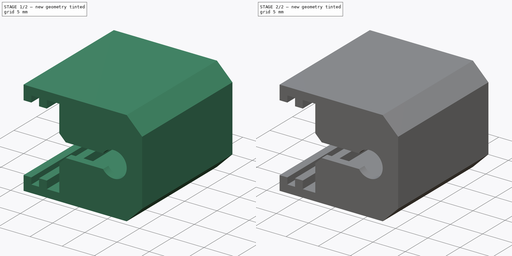
[diagram: build sequence overview — one tinted view per stage of 2, left to right]
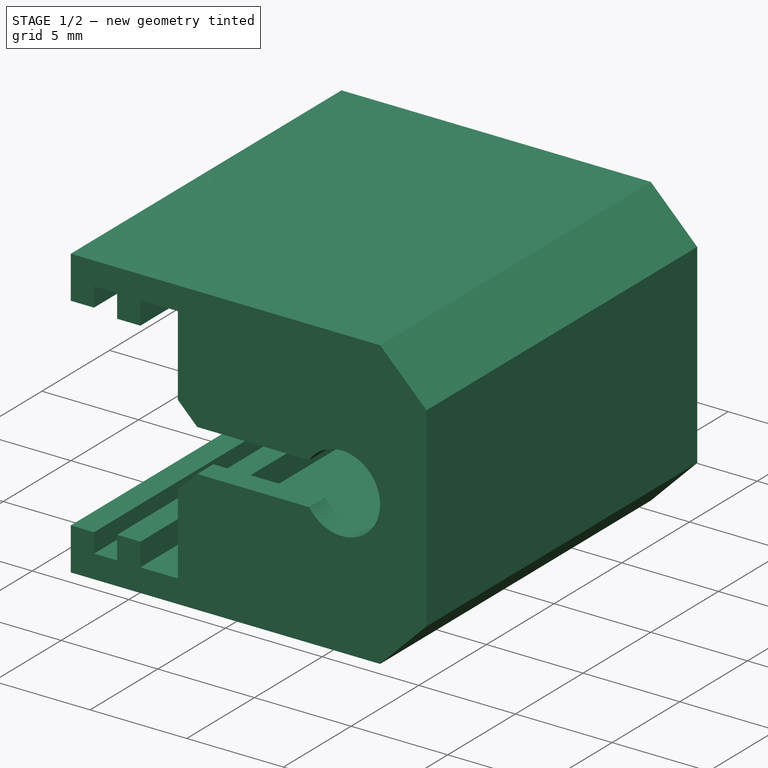
[diagram: stage 1 of 2 — iso view after this stage's code; geometry added in this stage tinted green]
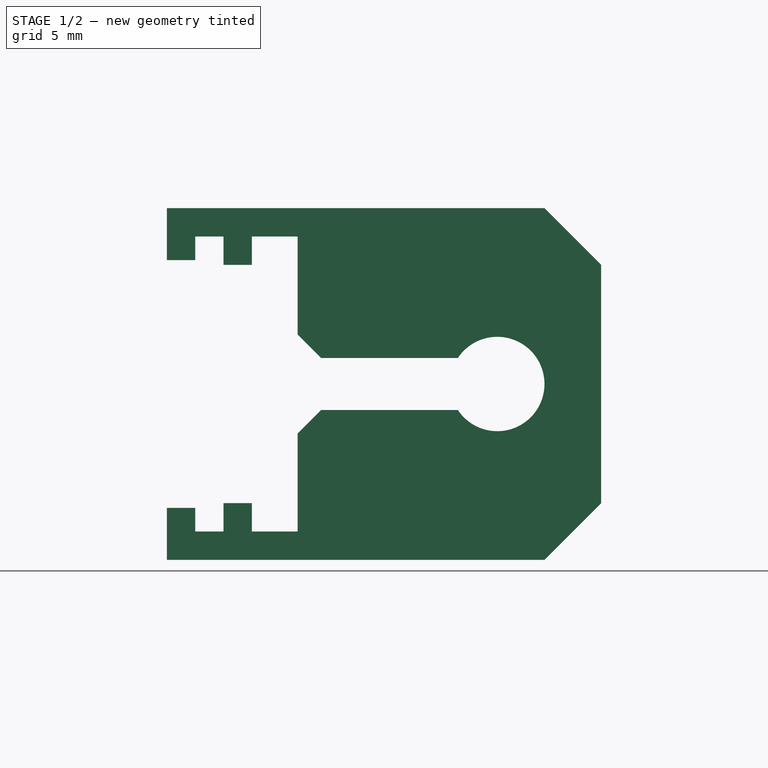
[diagram: stage 1 of 2 — front view after this stage's code; geometry added in this stage tinted green]
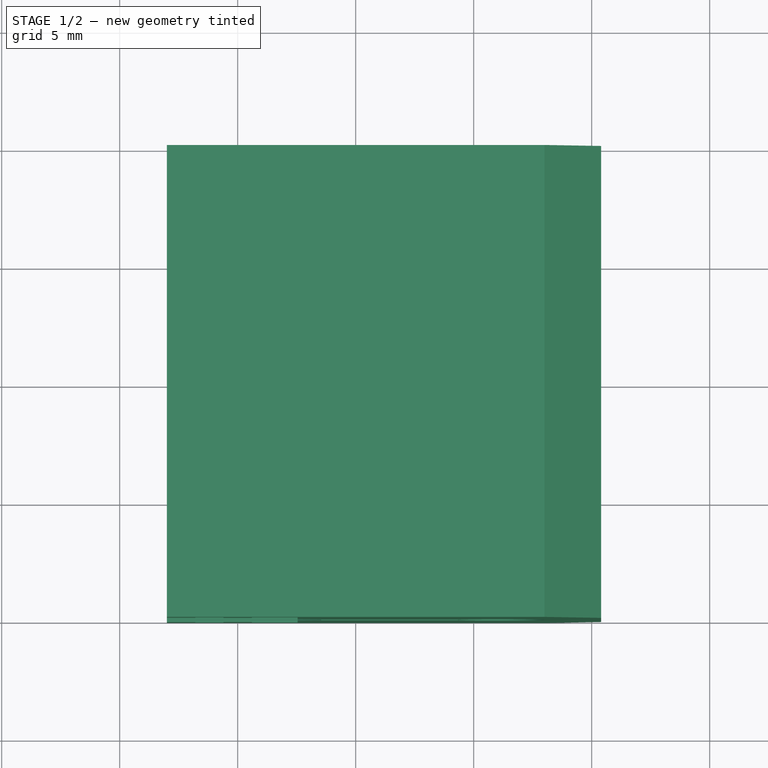
[diagram: stage 1 of 2 — top view after this stage's code; geometry added in this stage tinted green]
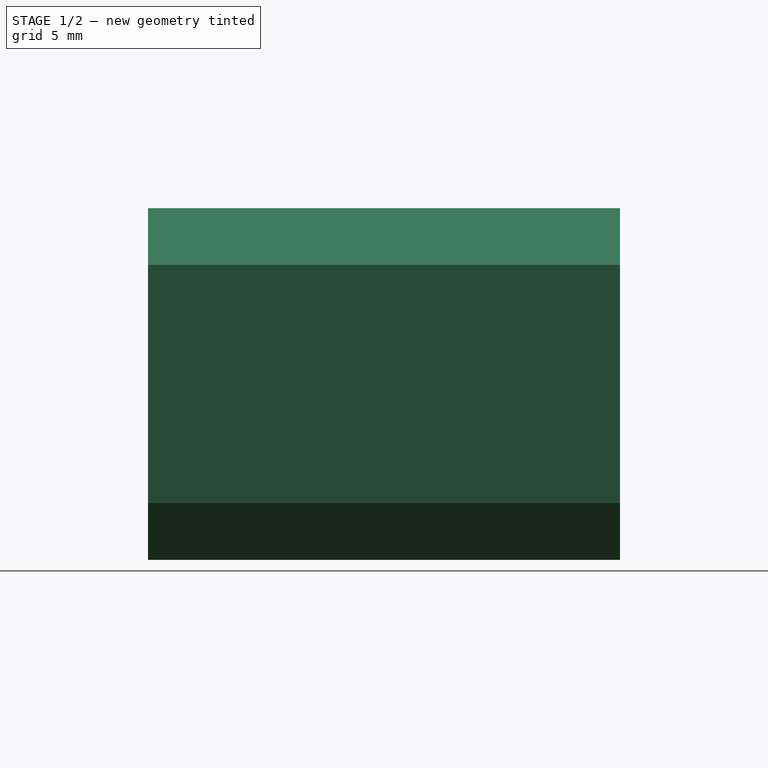
[diagram: stage 1 of 2 — right view after this stage's code; geometry added in this stage tinted green]
FCSTD DOCUMENT  (FreeCAD 0.20R29603 (Git))
Label: DB9_Housing
License: All rights reserved
LicenseURL: http://en.wikipedia.org/wiki/All_rights_reserved
objects: Sketcher::SketchObject×2, PartDesign::Pad×2, PartDesign::Plane×1, PartDesign::LinearPattern×1, PartDesign::Body×1
note: 9 computed .brp shape members not serialized (recipe doc carries the construction recipe); baked Part::Feature solids carry a one-line shape summary decoded from their .brp

FEATURE [Sketcher::SketchObject] Sketch
  FullyConstrained = true
  MapMode = 5
  Placement = pos=(0,0,0) rot=(1,0,0;1.5708rad)
  Support = -> [XZ_Plane]
  sketch-geometry (24):
    g0: LineSegment StartX=-8 StartY=7.45 StartZ=0 EndX=8 EndY=7.45 EndZ=0
    g1: LineSegment StartX=-8 StartY=-7.45 StartZ=0 EndX=-8 EndY=-5.25 EndZ=0
    g2: LineSegment StartX=-8 StartY=-5.25 StartZ=0 EndX=-6.8 EndY=-5.25 EndZ=0
    g3: LineSegment StartX=-6.8 StartY=-5.25 StartZ=0 EndX=-6.8 EndY=-6.25 EndZ=0
    g4: LineSegment StartX=-6.8 StartY=6.25 StartZ=0 EndX=-6.8 EndY=5.25 EndZ=0
    g5: LineSegment StartX=-6.8 StartY=5.25 StartZ=0 EndX=-8 EndY=5.25 EndZ=0
    g6: LineSegment StartX=-8 StartY=5.25 StartZ=0 EndX=-8 EndY=7.45 EndZ=0
    g7: LineSegment StartX=8 StartY=7.45 StartZ=0 EndX=10.4 EndY=5.05 EndZ=0
    g8: LineSegment StartX=10.4 StartY=5.05 StartZ=0 EndX=10.4 EndY=-5.05 EndZ=0
    g9: LineSegment StartX=10.4 StartY=-5.05 StartZ=0 EndX=8 EndY=-7.45 EndZ=0
    g10: LineSegment StartX=-8 StartY=-7.45 StartZ=0 EndX=8 EndY=-7.45 EndZ=0
    g11: LineSegment StartX=7.5383 StartY=6.25 StartZ=0 EndX=9.2 EndY=4.5883 EndZ=0
    g12: LineSegment StartX=9.2 StartY=4.5883 StartZ=0 EndX=9.2 EndY=-4.5883 EndZ=0
    g13: LineSegment StartX=9.2 StartY=-4.5883 StartZ=0 EndX=7.5383 EndY=-6.25 EndZ=0
    g14: LineSegment StartX=-6.8 StartY=6.25 StartZ=0 EndX=-5.6 EndY=6.25 EndZ=0
    g15: LineSegment StartX=-5.6 StartY=6.25 StartZ=0 EndX=-5.6 EndY=5.05 EndZ=0
    g16: LineSegment StartX=-5.6 StartY=5.05 StartZ=0 EndX=-4.4 EndY=5.05 EndZ=0
    g17: LineSegment StartX=-4.4 StartY=5.05 StartZ=0 EndX=-4.4 EndY=6.25 EndZ=0
    g18: LineSegment StartX=-4.4 StartY=6.25 StartZ=0 EndX=7.5383 EndY=6.25 EndZ=0
    g19: LineSegment StartX=-6.8 StartY=-6.25 StartZ=0 EndX=-5.6 EndY=-6.25 EndZ=0
    g20: LineSegment StartX=-5.6 StartY=-6.25 StartZ=0 EndX=-5.6 EndY=-5.05 EndZ=0
    g21: LineSegment StartX=-5.6 StartY=-5.05 StartZ=0 EndX=-4.4 EndY=-5.05 EndZ=0
    g22: LineSegment StartX=-4.4 StartY=-5.05 StartZ=0 EndX=-4.4 EndY=-6.25 EndZ=0
    g23: LineSegment StartX=-4.4 StartY=-6.25 StartZ=0 EndX=7.5383 EndY=-6.25 EndZ=0
  constraints (66):
    c: Vertical(g1)
    c: Coincident(g1,g2)
    c: Horizontal(g2)
    c: Coincident(g2,g3)
    c: Coincident(g4,g5)
    c: Horizontal(g5)
    c: Coincident(g5,g6)
    c: Coincident(g6,g0)
    c: Vertical(g6)
    c: Symmetric(g0,g1,g-1)
    c: DistanceY(g4,g0) = 1.2
    c: DistanceX(g5,g4) = 1.2
    c: Vertical(g4)
    c: Vertical(g3)
    c: Symmetric(g0,g9,g-1)
    c: Equal(g5,g2)
    c: Equal(g4,g3)
    c: DistanceY(g13,g11) = 12.5
    c: Symmetric(g13,g11,g-1)
    c: Symmetric(g1,g9,g-2)
    c: DistanceY(g4,g4) = 1
    c: Coincident(g0,g7)
    c: Coincident(g7,g8)
    c: Coincident(g8,g9)
    c: Symmetric(g7,g8,g-1)
    c: DistanceY(g8,g7) = 10.1
    c: DistanceX(g0,g7) = 18.4
    c: Coincident(g10,g1)
    c: Coincident(g10,g9)
    c: Angle(g1,g7) = 0.785398
    c: Coincident(g11,g12)
    c: Coincident(g12,g13)
    c: Symmetric(g11,g12,g-1)
    c: Parallel(g11,g7)
    c: DistanceX(g12,g8) = 1.2
    c: Distance(g11) = 2.35
    c: Coincident(g4,g14)
    c: Horizontal(g14)
    c: Coincident(g14,g15)
    c: Vertical(g15)
    c: Coincident(g15,g16)
    c: Horizontal(g16)
    c: Coincident(g16,g17)
    c: Vertical(g17)
    c: Coincident(g17,g18)
    c: Coincident(g18,g11)
    c: Horizontal(g18)
    c: DistanceX(g4,g14) = 1.2
    c: DistanceX(g15,g16) = 1.2
    c: DistanceY(g16,g17) = 1.2
    c: DistanceY(g14,g17) = 0
    c: Horizontal(g19)
    c: Coincident(g19,g20)
    c: Vertical(g20)
    c: Coincident(g20,g21)
    c: Horizontal(g21)
    c: Coincident(g21,g22)
    c: Vertical(g22)
    c: Coincident(g22,g23)
    c: Coincident(g23,g13)
    c: Horizontal(g23)
    c: Equal(g16,g21)
    c: Equal(g19,g14)
    c: Equal(g22,g17)
    c: Coincident(g19,g3)
    c: Equal(g20,g22)
FEATURE [PartDesign::Pad] Pad
  Direction = (0,-1,-2e-16)
  Length = 20
  Length2 = 10
  Placement = pos=(0,0,0) rot=(1,0,0;1.5708rad)
  Profile = -> Sketch
  ReferenceAxis = -> Sketch [N_Axis]
  Type = 0
FEATURE [PartDesign::Plane] DatumPlane  label="PlaneTamp1"
  Length = 60
  MapMode = 5
  Placement = pos=(0,-20,0) rot=(1,0,0;1.5708rad)
  ResizeMode = 0
  Support = -> [Pad]
  Width = 60
FEATURE [Sketcher::SketchObject] Sketch001
  ExternalGeometry = -> [Pad]
  FullyConstrained = true
  MapMode = 5
  Placement = pos=(0,-20,0) rot=(1,0,0;1.5708rad)
  Support = -> [DatumPlane]
  sketch-geometry (12):
    g0: LineSegment StartX=-2.4617 StartY=6.25 StartZ=0 EndX=7.5383 EndY=6.25 EndZ=0
    g1: LineSegment StartX=7.5383 StartY=6.25 StartZ=0 EndX=9.2 EndY=4.5883 EndZ=0
    g2: LineSegment StartX=9.2 StartY=4.5883 StartZ=0 EndX=9.2 EndY=-4.5883 EndZ=0
    g3: LineSegment StartX=9.2 StartY=-4.5883 StartZ=0 EndX=7.5383 EndY=-6.25 EndZ=0
    g4: LineSegment StartX=-2.4617 StartY=-6.25 StartZ=0 EndX=-2.4617 EndY=-2.1 EndZ=0
    g5: LineSegment StartX=-2.4617 StartY=-2.1 StartZ=0 EndX=-1.4617 EndY=-1.1 EndZ=0
    g6: LineSegment StartX=-1.4617 StartY=1.1 StartZ=0 EndX=-2.4617 EndY=2.1 EndZ=0
    g7: LineSegment StartX=-2.4617 StartY=2.1 StartZ=0 EndX=-2.4617 EndY=6.25 EndZ=0
    g8: ArcOfCircle CenterX=6 CenterY=0 CenterZ=0 NormalX=0 NormalY=0 NormalZ=1 AngleXU=0 Radius=2 StartAngle=3.72396 EndAngle=8.84241
    g9: LineSegment StartX=-1.4617 StartY=1.1 StartZ=0 EndX=4.32967 EndY=1.1 EndZ=0
    g10: LineSegment StartX=4.32967 StartY=-1.1 StartZ=0 EndX=-1.4617 EndY=-1.1 EndZ=0
    g11: LineSegment StartX=-2.4617 StartY=-6.25 StartZ=0 EndX=7.5383 EndY=-6.25 EndZ=0
  constraints (31):
    c: PointOnObject(g0,g-3)
    c: Coincident(g0,g-4)
    c: Coincident(g0,g1)
    c: Coincident(g1,g-5)
    c: Coincident(g1,g2)
    c: Coincident(g2,g-6)
    c: Coincident(g2,g3)
    c: Coincident(g3,g-7)
    c: Vertical(g4)
    c: Coincident(g4,g5)
    c: Coincident(g6,g7)
    c: Coincident(g7,g0)
    c: Vertical(g7)
    c: Symmetric(g6,g4,g-1)
    c: Angle(g5) = 0.785398
    c: PointOnObject(g8,g-1)
    c: DistanceX(g-1,g8) = 6
    c: Diameter(g8) = 4
    c: Horizontal(g9)
    c: Horizontal(g10)
    c: DistanceY(g5,g6) = 2.2
    c: DistanceX(g5,g3) = 9
    c: Coincident(g8,g9)
    c: Coincident(g9,g6)
    c: Coincident(g5,g10)
    c: Coincident(g10,g8)
    c: Symmetric(g6,g5,g-1)
    c: Coincident(g11,g4)
    c: Coincident(g11,g3)
    c: Horizontal(g11)
    c: DistanceX(g4,g3) = 10
FEATURE [PartDesign::Pad] Pad001
  BaseFeature = -> Pad
  Direction = (0,-1,-2e-16)
  Length = 1.2
  Length2 = 10
  Placement = pos=(0,0,0) rot=(1,0,0;1.5708rad)
  Profile = -> Sketch001
  ReferenceAxis = -> Sketch001 [N_Axis]
  Reversed = true
  Type = 0
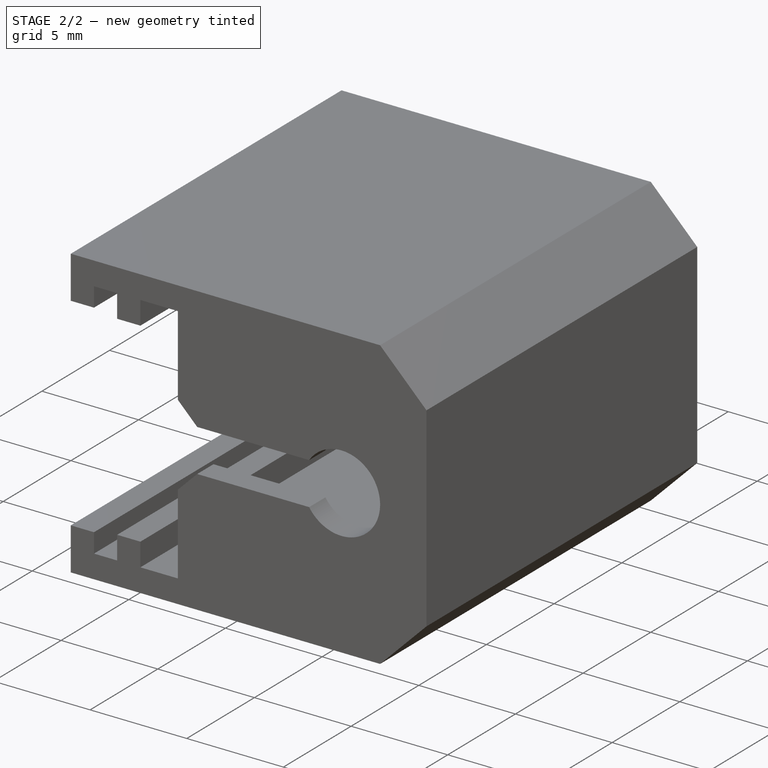
[diagram: stage 2 of 2 — iso view after this stage's code; geometry added in this stage tinted green]
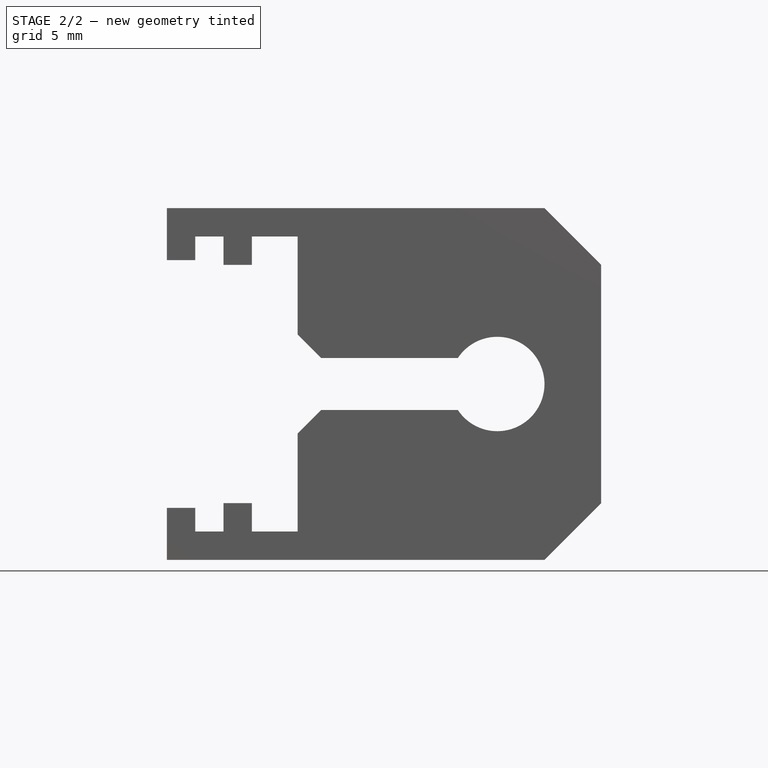
[diagram: stage 2 of 2 — front view after this stage's code; geometry added in this stage tinted green]
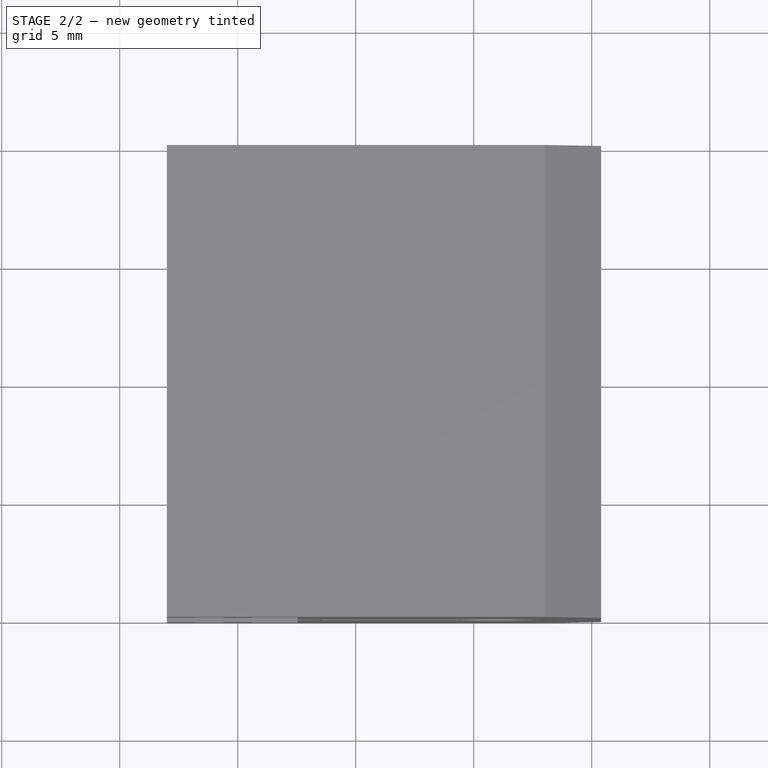
[diagram: stage 2 of 2 — top view after this stage's code; geometry added in this stage tinted green]
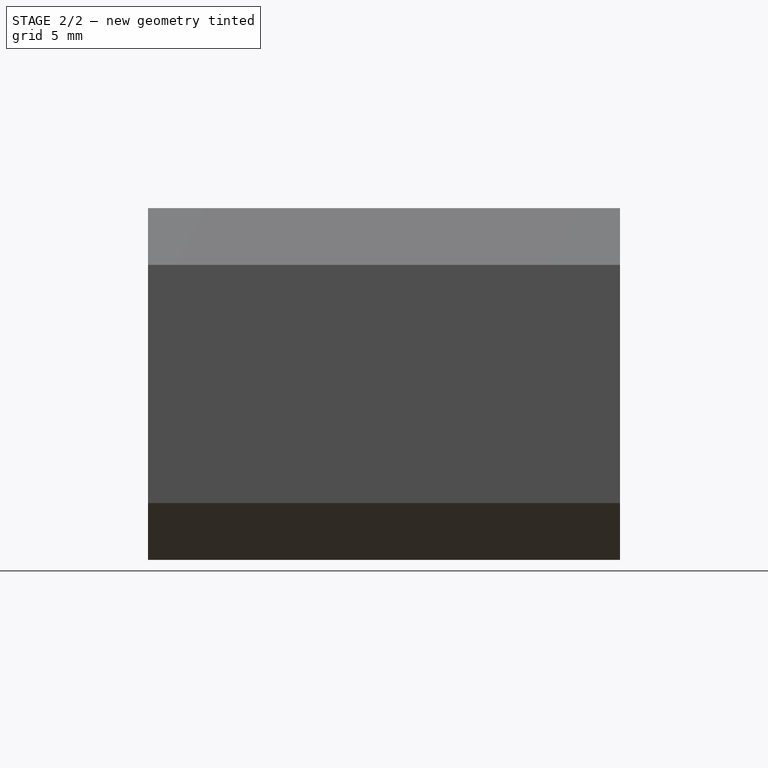
[diagram: stage 2 of 2 — right view after this stage's code; geometry added in this stage tinted green]
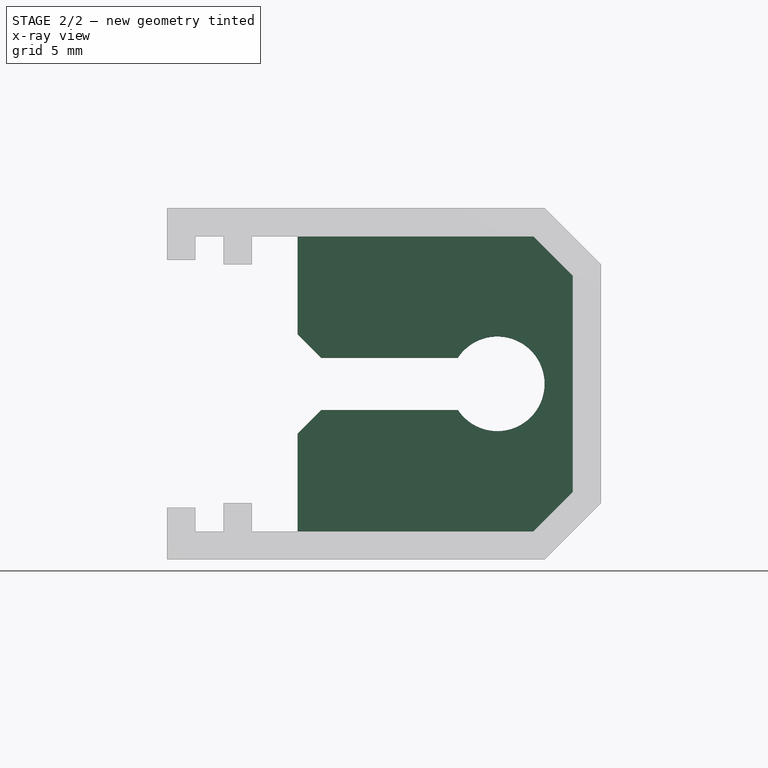
[diagram: stage 2 of 2 — x-ray composite at the front view; earlier geometry ghosted, this stage's added geometry solid]
FEATURE [PartDesign::LinearPattern] LinearPattern
  BaseFeature = -> Pad001
  Direction = -> Y_Axis
  Length = 18.8
  Occurrences = 2
  Originals = -> [Pad001]
  Placement = pos=(0,0,0) rot=(1,0,0;1.5708rad)
FEATURE [PartDesign::Body] Body
  Group = -> [Sketch,Pad,DatumPlane,Sketch001,Pad001,LinearPattern]
  Origin = -> Origin
  Tip = -> LinearPattern
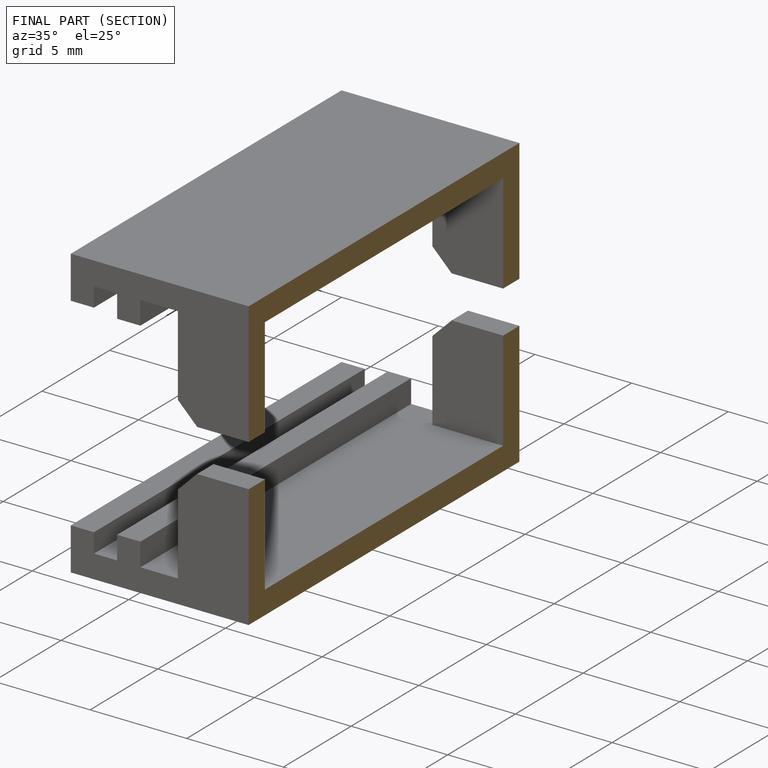
[diagram: finished part — half-section view (interior)]
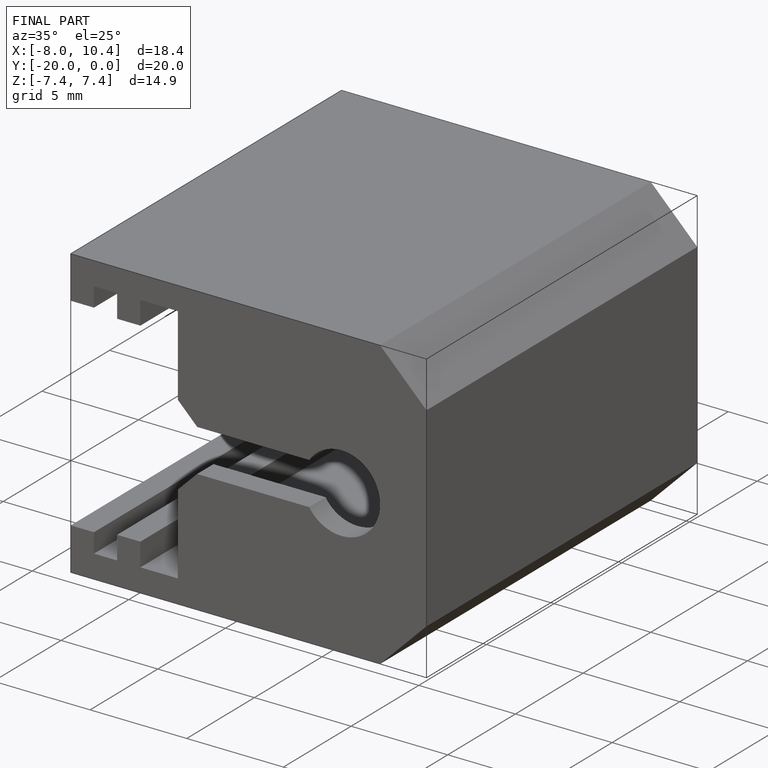
[diagram: finished part — iso view with bounding-box wireframe]
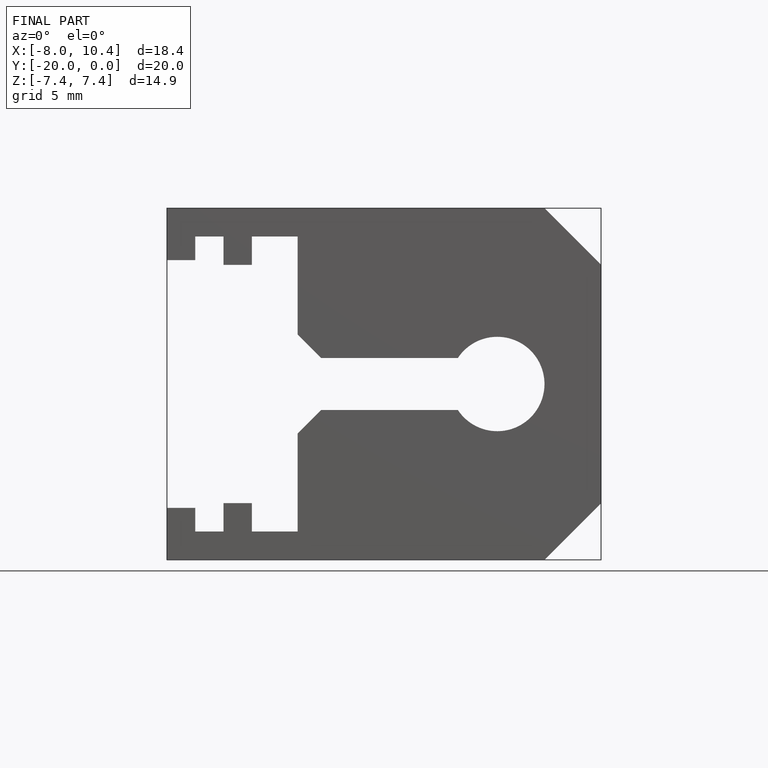
[diagram: finished part — front view with bounding-box wireframe]
